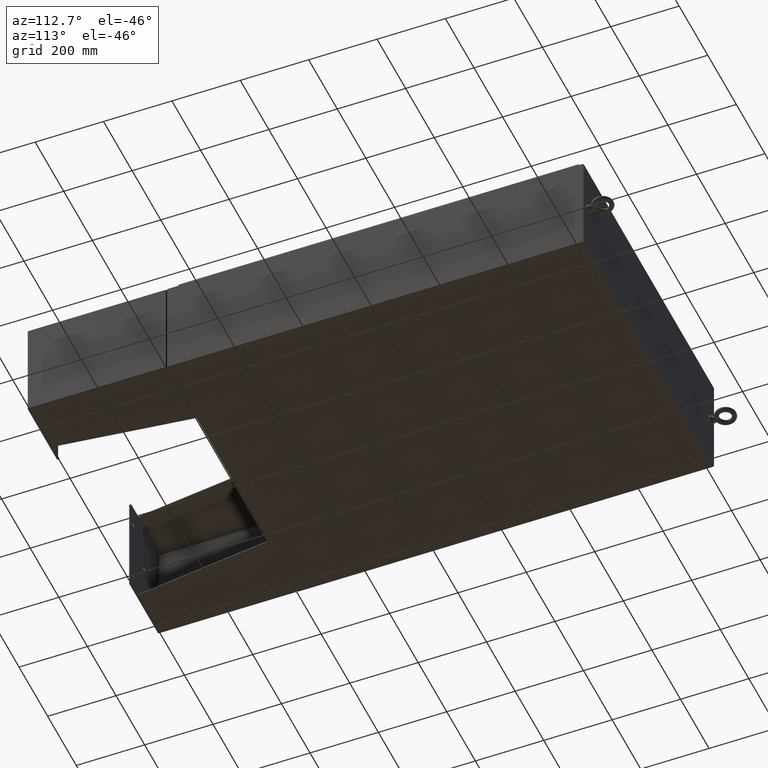
[diagram: clean part render]
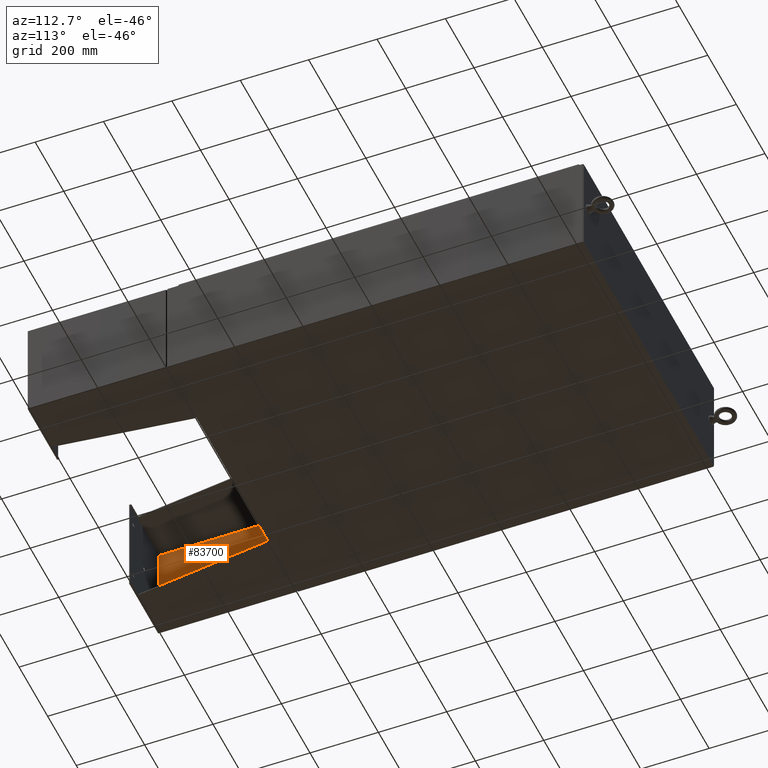
[diagram: same view with one face highlighted and labeled with its STEP entity id]
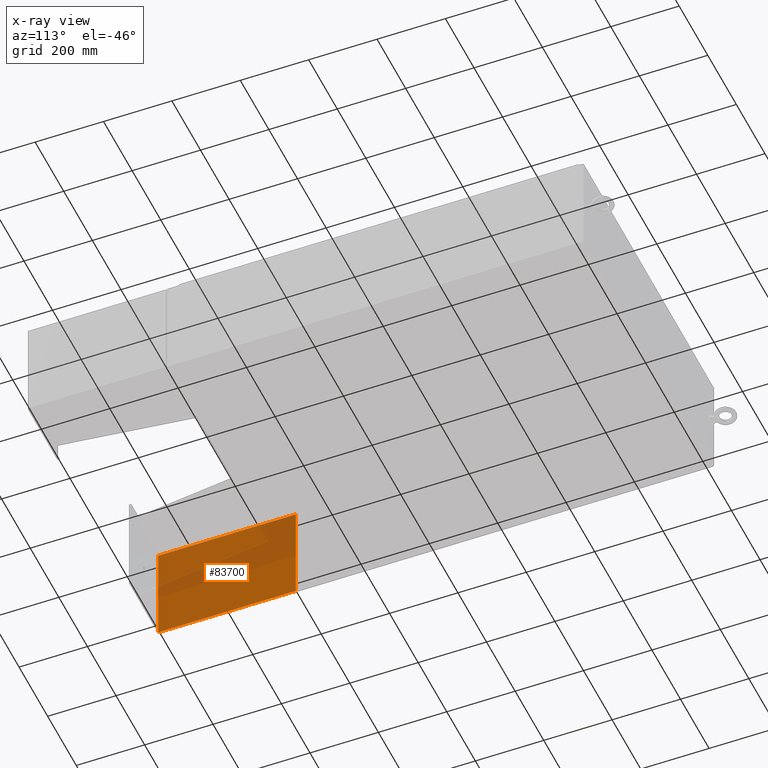
[diagram: x-ray of the same camera — body ghosted, the highlighted face saturated]
A machine part, auxiliary view. The second image highlights one B-rep face of the part: STEP entity #83700.
The next image is the same camera in x-ray: the body ghosted, the highlighted face saturated — about 30% of this face is hidden behind the body in this view.
In plain terms, the highlighted planar face has unit normal (-1, 0, -0).
Its self-contained STEP definition (entity closure, byte-faithful):
#1101 = LINE ( 'NONE', #88710, #57605 ) ;
#1772 = EDGE_CURVE ( 'NONE', #128085, #19256, #122769, .T. ) ;
#3468 = CARTESIAN_POINT ( 'NONE',  ( 5.999999999999996400, 8.000000000000001800, 0.0000000000000000000 ) ) ;
#14404 = DIRECTION ( 'NONE',  ( -0.0000000000000000000, -1.000000000000000000, -0.0000000000000000000 ) ) ;
#19256 = VERTEX_POINT ( 'NONE', #56498 ) ;
#29753 = EDGE_CURVE ( 'NONE', #35841, #19256, #1101, .T. ) ;
#32709 = VECTOR ( 'NONE', #105928, 39.37007874015748100 ) ;
#35601 = DIRECTION ( 'NONE',  ( -1.000000000000000000, 0.0000000000000000000, -0.0000000000000000000 ) ) ;
#35841 = VERTEX_POINT ( 'NONE', #76765 ) ;
#42307 = CARTESIAN_POINT ( 'NONE',  ( -5.857000000000000200, 7.857000000000001100, 1.365923996832131600E-016 ) ) ;
#50050 = CARTESIAN_POINT ( 'NONE',  ( -5.857000000000000200, -7.999999999999999100, 1.365923996832131600E-016 ) ) ;
#50749 = AXIS2_PLACEMENT_3D ( 'NONE', #3468, #99174, #35601 ) ;
#55900 = ORIENTED_EDGE ( 'NONE', *, *, #136854, .F. ) ;
#56498 = CARTESIAN_POINT ( 'NONE',  ( 5.857000000000000200, -7.999999999999997300, 1.365923996832131600E-016 ) ) ;
#57605 = VECTOR ( 'NONE', #14404, 39.37007874015748100 ) ;
#60668 = DIRECTION ( 'NONE',  ( -0.0000000000000000000, 1.000000000000000000, -0.0000000000000000000 ) ) ;
#76765 = CARTESIAN_POINT ( 'NONE',  ( 5.857000000000000200, 7.857000000000001100, 1.365923996832131600E-016 ) ) ;
#83230 = EDGE_CURVE ( 'NONE', #128085, #95723, #135640, .T. ) ;
#83700 = ADVANCED_FACE ( 'NONE', ( #127279 ), #88501, .F. ) ;
#88501 = PLANE ( 'NONE',  #50749 ) ;
#88710 = CARTESIAN_POINT ( 'NONE',  ( 5.857000000000000200, 8.000000000000001800, 1.365923996832131600E-016 ) ) ;
#94555 = VECTOR ( 'NONE', #121982, 39.37007874015748100 ) ;
#95723 = VERTEX_POINT ( 'NONE', #133934 ) ;
#99174 = DIRECTION ( 'NONE',  ( 0.0000000000000000000, 0.0000000000000000000, -1.000000000000000000 ) ) ;
#99563 = CARTESIAN_POINT ( 'NONE',  ( -5.857000000000000200, -8.000000000000000000, 1.365923996832131600E-016 ) ) ;
#103139 = EDGE_LOOP ( 'NONE', ( #55900, #107038, #136947, #114101 ) ) ;
#105928 = DIRECTION ( 'NONE',  ( 1.000000000000000000, 0.0000000000000000000, 0.0000000000000000000 ) ) ;
#107038 = ORIENTED_EDGE ( 'NONE', *, *, #83230, .F. ) ;
#114101 = ORIENTED_EDGE ( 'NONE', *, *, #29753, .F. ) ;
#117377 = LINE ( 'NONE', #42307, #32709 ) ;
#121982 = DIRECTION ( 'NONE',  ( 1.000000000000000000, 0.0000000000000000000, 0.0000000000000000000 ) ) ;
#122769 = LINE ( 'NONE', #127072, #94555 ) ;
#127072 = CARTESIAN_POINT ( 'NONE',  ( -6.000000000000000900, -7.999999999999999100, 0.0000000000000000000 ) ) ;
#127279 = FACE_OUTER_BOUND ( 'NONE', #103139, .T. ) ;
#128085 = VERTEX_POINT ( 'NONE', #99563 ) ;
#132311 = VECTOR ( 'NONE', #60668, 39.37007874015748100 ) ;
#133934 = CARTESIAN_POINT ( 'NONE',  ( -5.857000000000000200, 7.857000000000001100, 1.365923996832131600E-016 ) ) ;
#135640 = LINE ( 'NONE', #50050, #132311 ) ;
#136854 = EDGE_CURVE ( 'NONE', #95723, #35841, #117377, .T. ) ;
#136947 = ORIENTED_EDGE ( 'NONE', *, *, #1772, .T. ) ;